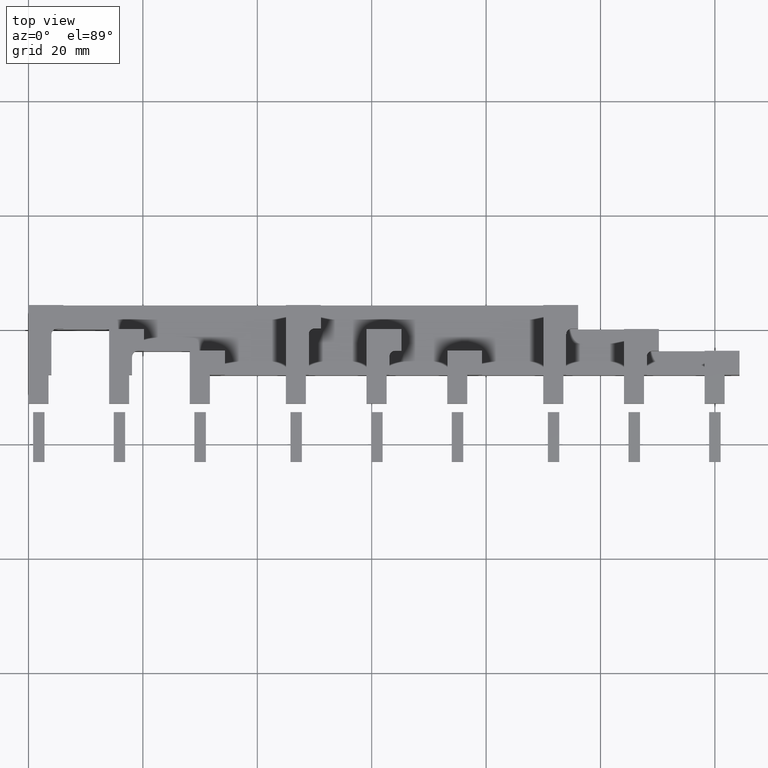
[diagram: clean part render]
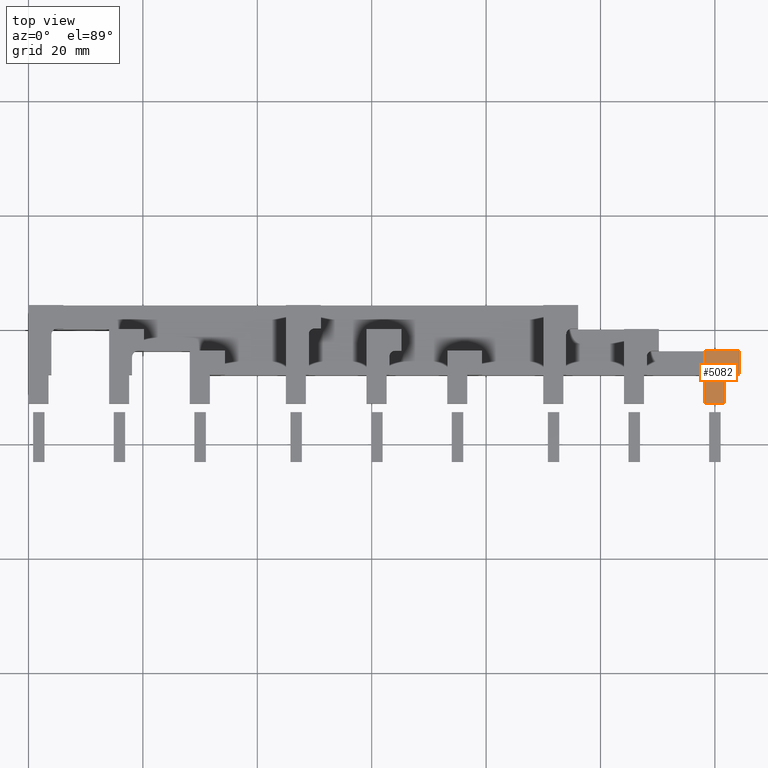
[diagram: same view with one face highlighted and labeled with its STEP entity id]
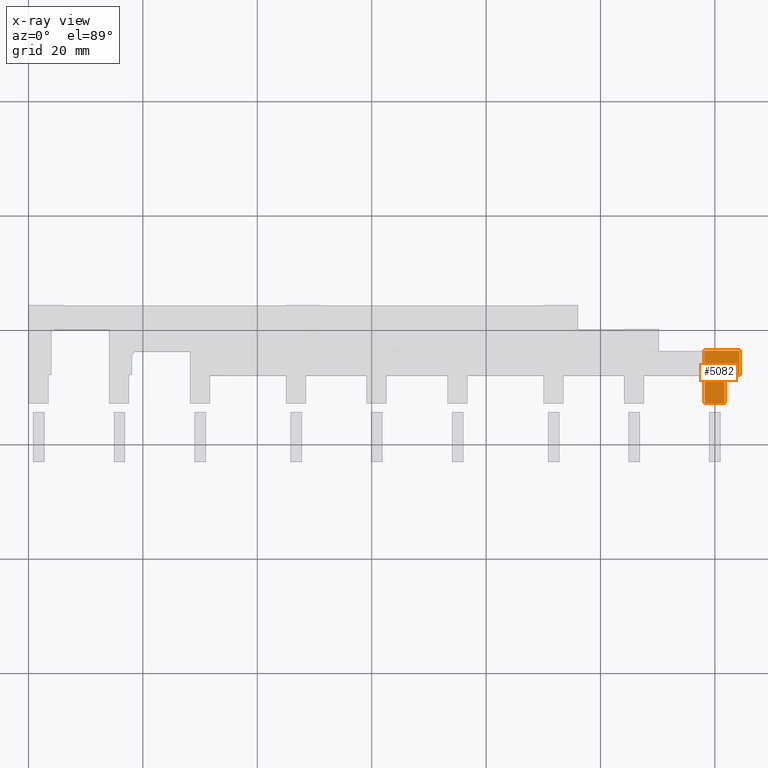
[diagram: x-ray of the same camera — body ghosted, the highlighted face saturated]
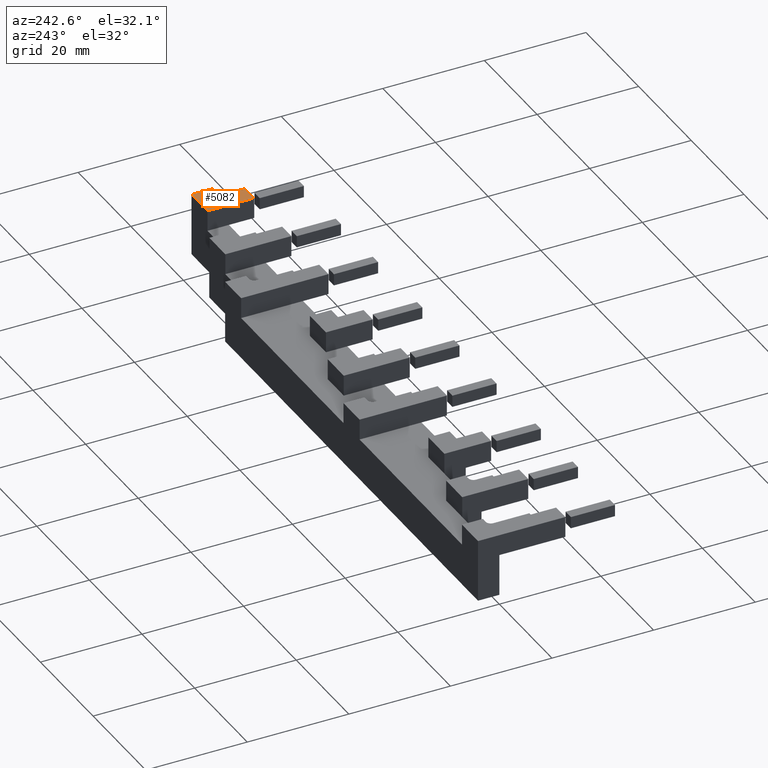
[diagram: same view with one face highlighted and labeled with its STEP entity id]
A machine part, top view. The second image highlights one B-rep face of the part: STEP entity #5082.
The next image is the same camera in x-ray: the body ghosted, the highlighted face saturated — about 0% of this face is hidden behind the body in this view.
A second angle (auxiliary view) of the same face is appended — the face is thin or edge-on in the first view.
In plain terms, the highlighted planar face has unit normal (0, 0, -1).
Its self-contained STEP definition (entity closure, byte-faithful):
#4913=CARTESIAN_POINT('',(118.19999999999982,-3.79999999999862,108.09999999999071));
#4914=VERTEX_POINT('',#4913);
#4915=CARTESIAN_POINT('',(124.29999999999986,-3.799999999998534,108.09999999999064));
#4916=VERTEX_POINT('',#4915);
#4917=CARTESIAN_POINT('',(118.19999999999982,-3.79999999999862,108.09999999999071));
#4918=DIRECTION('',(1.0,0.0,0.0));
#4919=VECTOR('',#4918,6.100000000000023);
#4920=LINE('',#4917,#4919);
#4921=EDGE_CURVE('',#4914,#4916,#4920,.T.);
#4951=CARTESIAN_POINT('',(124.29999999999991,-7.999999999998538,108.09999999999064));
#4952=VERTEX_POINT('',#4951);
#4953=CARTESIAN_POINT('',(124.29999999999986,-3.799999999998534,108.09999999999064));
#4954=DIRECTION('',(0.0,-1.0,0.0));
#4955=VECTOR('',#4954,4.200000000000005);
#4956=LINE('',#4953,#4955);
#4957=EDGE_CURVE('',#4916,#4952,#4956,.T.);
#4975=CARTESIAN_POINT('',(121.7,-7.999999999998581,108.09999999999066));
#4976=VERTEX_POINT('',#4975);
#4977=CARTESIAN_POINT('',(121.70000000000005,-12.999999999998582,108.09999999999066));
#4978=VERTEX_POINT('',#4977);
#4979=CARTESIAN_POINT('',(121.7,-7.999999999998581,108.09999999999066));
#4980=DIRECTION('',(0.0,-1.0,0.0));
#4981=VECTOR('',#4980,5.000000000000002);
#4982=LINE('',#4979,#4981);
#4983=EDGE_CURVE('',#4976,#4978,#4982,.T.);
#5015=CARTESIAN_POINT('',(118.19999999999993,-12.999999999998623,108.09999999999071));
#5016=VERTEX_POINT('',#5015);
#5017=CARTESIAN_POINT('',(121.70000000000005,-12.999999999998582,108.09999999999066));
#5018=DIRECTION('',(-1.0,0.0,0.0));
#5019=VECTOR('',#5018,3.500000000000114);
#5020=LINE('',#5017,#5019);
#5021=EDGE_CURVE('',#4978,#5016,#5020,.T.);
#5046=CARTESIAN_POINT('',(118.19999999999993,-12.999999999998623,108.09999999999071));
#5047=DIRECTION('',(0.0,1.0,0.0));
#5048=VECTOR('',#5047,9.200000000000005);
#5049=LINE('',#5046,#5048);
#5050=EDGE_CURVE('',#5016,#4914,#5049,.T.);
#5064=CARTESIAN_POINT('',(120.82516339869279,-7.975163398691395,108.09999999999067));
#5065=DIRECTION('',(0.0,0.0,-1.0));
#5066=DIRECTION('',(0.0,1.0,0.0));
#5067=AXIS2_PLACEMENT_3D('',#5064,#5065,#5066);
#5068=PLANE('',#5067);
#5069=ORIENTED_EDGE('',*,*,#4921,.F.);
#5070=ORIENTED_EDGE('',*,*,#5050,.F.);
#5071=ORIENTED_EDGE('',*,*,#5021,.F.);
#5072=ORIENTED_EDGE('',*,*,#4983,.F.);
#5073=CARTESIAN_POINT('',(124.29999999999991,-7.999999999998538,108.09999999999064));
#5074=DIRECTION('',(-1.0,0.0,0.0));
#5075=VECTOR('',#5074,2.599999999999909);
#5076=LINE('',#5073,#5075);
#5077=EDGE_CURVE('',#4952,#4976,#5076,.T.);
#5078=ORIENTED_EDGE('',*,*,#5077,.F.);
#5079=ORIENTED_EDGE('',*,*,#4957,.F.);
#5080=EDGE_LOOP('',(#5069,#5070,#5071,#5072,#5078,#5079));
#5081=FACE_OUTER_BOUND('',#5080,.T.);
#5082=ADVANCED_FACE('',(#5081),#5068,.F.);